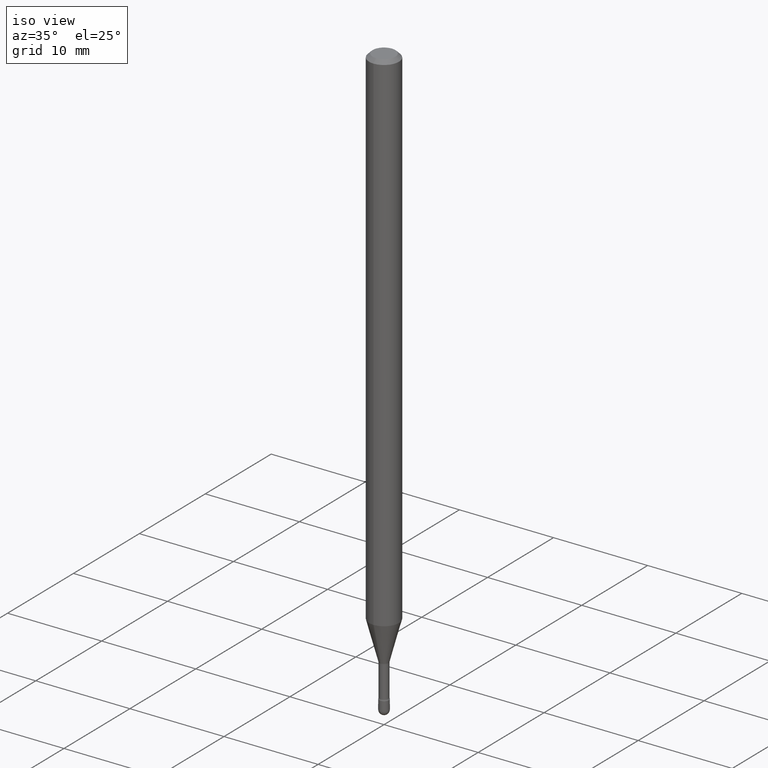
[diagram: clean part render]
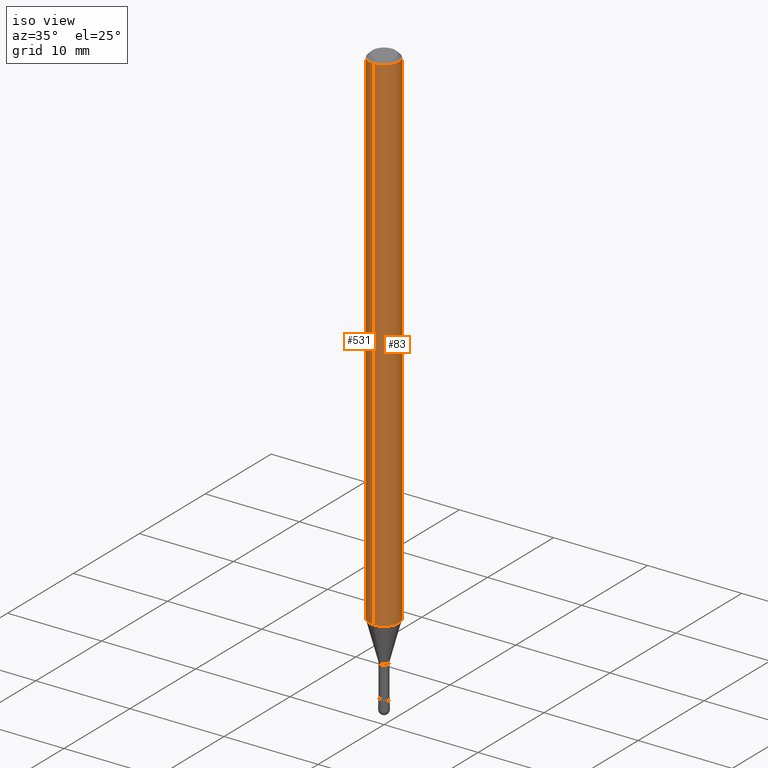
[diagram: same view with one multi-face feature highlighted, each face labeled with its STEP entity id]
A machine part, iso view. The highlighted faces form ONE feature: a constant-radius fillet chain: 2 tangent blend faces with common blend radius 1.5875 mm. The faces share edges in the B-rep.
Their STEP definitions:
[1] entity #83 (Cylinder):
#1 = ORIENTED_EDGE ( 'NONE', *, *, #402, .T. ) ;
#5 = FACE_OUTER_BOUND ( 'NONE', #67, .T. ) ;
#23 = CARTESIAN_POINT ( 'NONE',  ( -4.364351673553395060E-16, -0.06250000000000748013, -2.136909379709240220 ) ) ;
#39 = VERTEX_POINT ( 'NONE', #121 ) ;
#45 = VERTEX_POINT ( 'NONE', #288 ) ;
#46 = VECTOR ( 'NONE', #59, 39.37007874015748143 ) ;
#59 = DIRECTION ( 'NONE',  ( -2.445421573966572073E-29, 3.491548978068420720E-15, 1.000000000000000000 ) ) ;
#66 = LINE ( 'NONE', #542, #219 ) ;
#67 = EDGE_LOOP ( 'NONE', ( #364, #1, #133, #480 ) ) ;
#83 = ADVANCED_FACE ( 'NONE', ( #5 ), #425, .T. ) ;
#102 = AXIS2_PLACEMENT_3D ( 'NONE', #223, #319, #528 ) ;
#121 = CARTESIAN_POINT ( 'NONE',  ( 4.440892098501151740E-16, 0.06249999999999995143, -0.01500000000000030129 ) ) ;
#132 = CIRCLE ( 'NONE', #102, 0.06250000000000000000 ) ;
#133 = ORIENTED_EDGE ( 'NONE', *, *, #453, .F. ) ;
#146 = CARTESIAN_POINT ( 'NONE',  ( -4.364351673553912750E-16, -0.06250000000000005551, -0.01499999999999986587 ) ) ;
#157 = DIRECTION ( 'NONE',  ( -2.445421573966572073E-29, 3.491548978068420720E-15, 1.000000000000000000 ) ) ;
#211 = CIRCLE ( 'NONE', #300, 0.06250000000000000000 ) ;
#219 = VECTOR ( 'NONE', #533, 39.37007874015748143 ) ;
#221 = VERTEX_POINT ( 'NONE', #146 ) ;
#223 = CARTESIAN_POINT ( 'NONE',  ( 5.225644298752501589E-29, -7.461123760948621165E-15, -2.136909379709240220 ) ) ;
#246 = DIRECTION ( 'NONE',  ( -6.982962677686265922E-15, -1.000000000000000000, 3.483106191921935554E-15 ) ) ;
#268 = EDGE_CURVE ( 'NONE', #327, #45, #132, .T. ) ;
#288 = CARTESIAN_POINT ( 'NONE',  ( 4.440892098501145824E-16, 0.06249999999999251987, -2.136909379709240664 ) ) ;
#300 = AXIS2_PLACEMENT_3D ( 'NONE', #407, #157, #246 ) ;
#319 = DIRECTION ( 'NONE',  ( -2.445421573966572073E-29, 3.491548978068420720E-15, 1.000000000000000000 ) ) ;
#325 = LINE ( 'NONE', #396, #46 ) ;
#327 = VERTEX_POINT ( 'NONE', #23 ) ;
#341 = DIRECTION ( 'NONE',  ( -2.445421573966572073E-29, 3.491548978068420720E-15, 1.000000000000000000 ) ) ;
#364 = ORIENTED_EDGE ( 'NONE', *, *, #268, .T. ) ;
#367 = AXIS2_PLACEMENT_3D ( 'NONE', #556, #341, #513 ) ;
#396 = CARTESIAN_POINT ( 'NONE',  ( -4.364351673553916201E-16, -0.06250000000000000000, 6.962952100205223829E-16 ) ) ;
#402 = EDGE_CURVE ( 'NONE', #45, #39, #66, .T. ) ;
#407 = CARTESIAN_POINT ( 'NONE',  ( 3.668132360949878113E-31, -5.237323467102660391E-17, -0.01500000000000008271 ) ) ;
#425 = CYLINDRICAL_SURFACE ( 'NONE', #367, 0.06250000000000000000 ) ;
#453 = EDGE_CURVE ( 'NONE', #221, #39, #211, .T. ) ;
#478 = EDGE_CURVE ( 'NONE', #327, #221, #325, .T. ) ;
#480 = ORIENTED_EDGE ( 'NONE', *, *, #478, .F. ) ;
#513 = DIRECTION ( 'NONE',  ( -6.982962677686265922E-15, -1.000000000000000000, 3.491548978068421114E-15 ) ) ;
#528 = DIRECTION ( 'NONE',  ( -6.982962677686265922E-15, -1.000000000000000000, 4.370956789862821150E-15 ) ) ;
#533 = DIRECTION ( 'NONE',  ( -2.445421573966572073E-29, 3.491548978068420720E-15, 1.000000000000000000 ) ) ;
#542 = CARTESIAN_POINT ( 'NONE',  ( 4.440892098500625669E-16, 0.06250000000000000000, 2.598515877619697929E-16 ) ) ;
#556 = CARTESIAN_POINT ( 'NONE',  ( -1.169113584055446105E-44, 1.669184350826100908E-30, 4.780733988912460139E-16 ) ) ;
[2] entity #531 (Cylinder):
#21 = AXIS2_PLACEMENT_3D ( 'NONE', #218, #123, #479 ) ;
#23 = CARTESIAN_POINT ( 'NONE',  ( -4.364351673553395060E-16, -0.06250000000000748013, -2.136909379709240220 ) ) ;
#33 = ORIENTED_EDGE ( 'NONE', *, *, #402, .F. ) ;
#39 = VERTEX_POINT ( 'NONE', #121 ) ;
#45 = VERTEX_POINT ( 'NONE', #288 ) ;
#46 = VECTOR ( 'NONE', #59, 39.37007874015748143 ) ;
#59 = DIRECTION ( 'NONE',  ( -2.445421573966572073E-29, 3.491548978068420720E-15, 1.000000000000000000 ) ) ;
#66 = LINE ( 'NONE', #542, #219 ) ;
#69 = ORIENTED_EDGE ( 'NONE', *, *, #478, .T. ) ;
#89 = DIRECTION ( 'NONE',  ( -6.982962677686265922E-15, -1.000000000000000000, 3.491548978068421114E-15 ) ) ;
#109 = EDGE_LOOP ( 'NONE', ( #33, #128, #69, #231 ) ) ;
#121 = CARTESIAN_POINT ( 'NONE',  ( 4.440892098501151740E-16, 0.06249999999999995143, -0.01500000000000030129 ) ) ;
#123 = DIRECTION ( 'NONE',  ( -2.445421573966572073E-29, 3.491548978068420720E-15, 1.000000000000000000 ) ) ;
#128 = ORIENTED_EDGE ( 'NONE', *, *, #140, .T. ) ;
#140 = EDGE_CURVE ( 'NONE', #45, #327, #481, .T. ) ;
#146 = CARTESIAN_POINT ( 'NONE',  ( -4.364351673553912750E-16, -0.06250000000000005551, -0.01499999999999986587 ) ) ;
#184 = DIRECTION ( 'NONE',  ( -6.982962677686265922E-15, -1.000000000000000000, 3.483106191921935554E-15 ) ) ;
#193 = AXIS2_PLACEMENT_3D ( 'NONE', #482, #390, #184 ) ;
#218 = CARTESIAN_POINT ( 'NONE',  ( 5.225644298752501589E-29, -7.461123760948621165E-15, -2.136909379709240220 ) ) ;
#219 = VECTOR ( 'NONE', #533, 39.37007874015748143 ) ;
#221 = VERTEX_POINT ( 'NONE', #146 ) ;
#231 = ORIENTED_EDGE ( 'NONE', *, *, #315, .F. ) ;
#263 = CYLINDRICAL_SURFACE ( 'NONE', #432, 0.06250000000000000000 ) ;
#288 = CARTESIAN_POINT ( 'NONE',  ( 4.440892098501145824E-16, 0.06249999999999251987, -2.136909379709240664 ) ) ;
#294 = FACE_OUTER_BOUND ( 'NONE', #109, .T. ) ;
#315 = EDGE_CURVE ( 'NONE', #39, #221, #351, .T. ) ;
#325 = LINE ( 'NONE', #396, #46 ) ;
#327 = VERTEX_POINT ( 'NONE', #23 ) ;
#346 = CARTESIAN_POINT ( 'NONE',  ( -1.169113584055446105E-44, 1.669184350826100908E-30, 4.780733988912460139E-16 ) ) ;
#351 = CIRCLE ( 'NONE', #193, 0.06250000000000000000 ) ;
#390 = DIRECTION ( 'NONE',  ( -2.445421573966572073E-29, 3.491548978068420720E-15, 1.000000000000000000 ) ) ;
#396 = CARTESIAN_POINT ( 'NONE',  ( -4.364351673553916201E-16, -0.06250000000000000000, 6.962952100205223829E-16 ) ) ;
#402 = EDGE_CURVE ( 'NONE', #45, #39, #66, .T. ) ;
#432 = AXIS2_PLACEMENT_3D ( 'NONE', #346, #475, #89 ) ;
#475 = DIRECTION ( 'NONE',  ( -2.445421573966572073E-29, 3.491548978068420720E-15, 1.000000000000000000 ) ) ;
#478 = EDGE_CURVE ( 'NONE', #327, #221, #325, .T. ) ;
#479 = DIRECTION ( 'NONE',  ( -6.982962677686265922E-15, -1.000000000000000000, 4.370956789862821150E-15 ) ) ;
#481 = CIRCLE ( 'NONE', #21, 0.06250000000000000000 ) ;
#482 = CARTESIAN_POINT ( 'NONE',  ( 3.668132360949878113E-31, -5.237323467102660391E-17, -0.01500000000000008271 ) ) ;
#531 = ADVANCED_FACE ( 'NONE', ( #294 ), #263, .T. ) ;
#533 = DIRECTION ( 'NONE',  ( -2.445421573966572073E-29, 3.491548978068420720E-15, 1.000000000000000000 ) ) ;
#542 = CARTESIAN_POINT ( 'NONE',  ( 4.440892098500625669E-16, 0.06250000000000000000, 2.598515877619697929E-16 ) ) ;